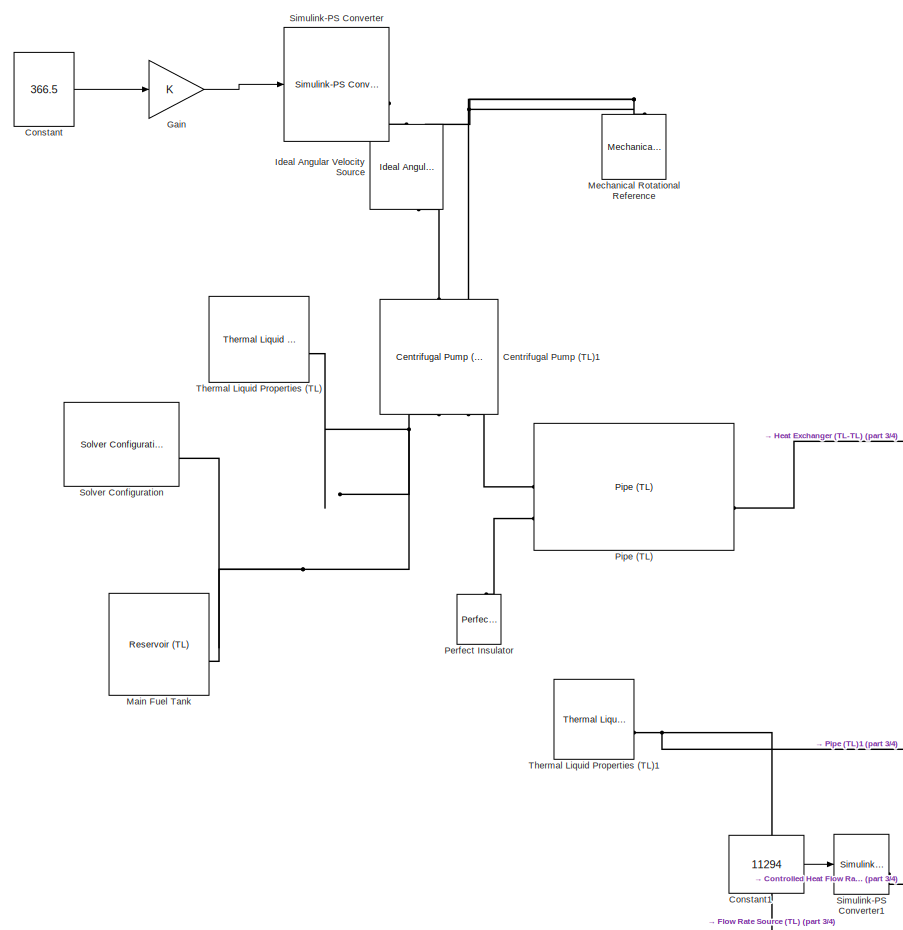
[diagram: root canvas - part 1/4, left side, full height]
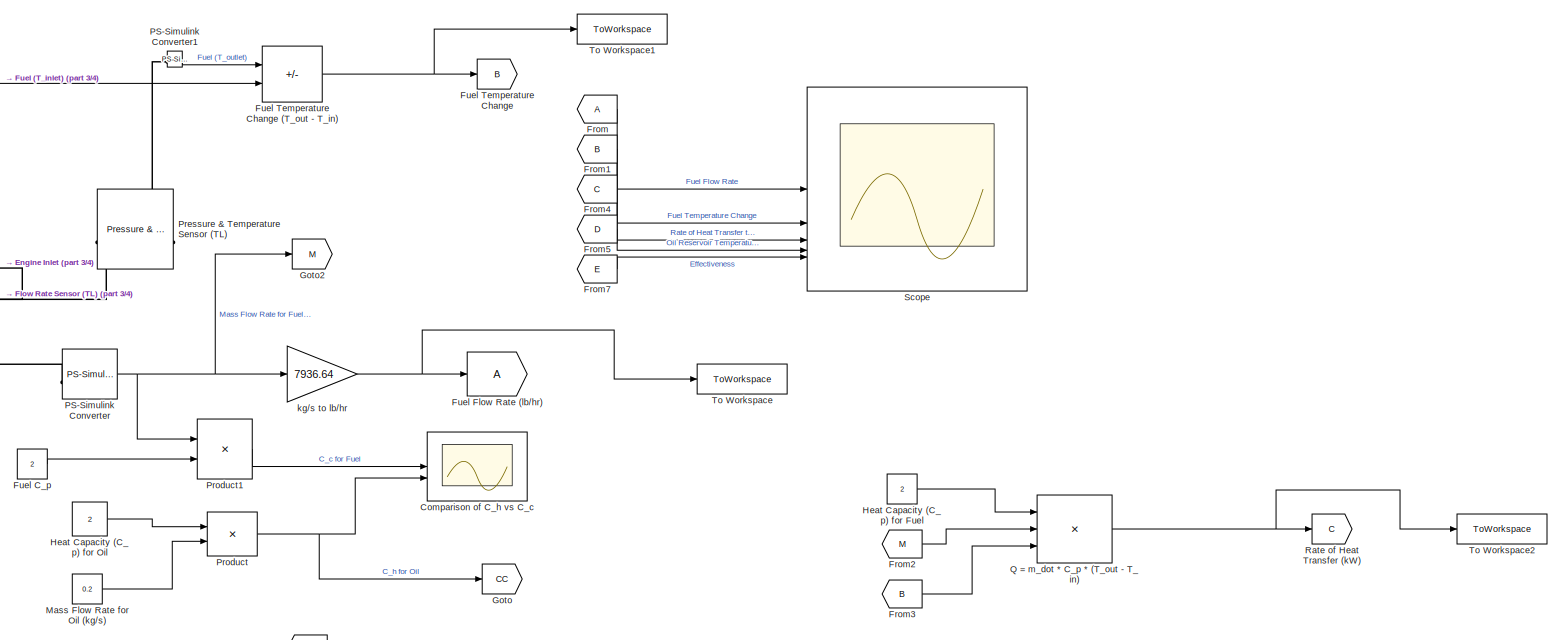
[diagram: root canvas - part 2/4, middle right region]
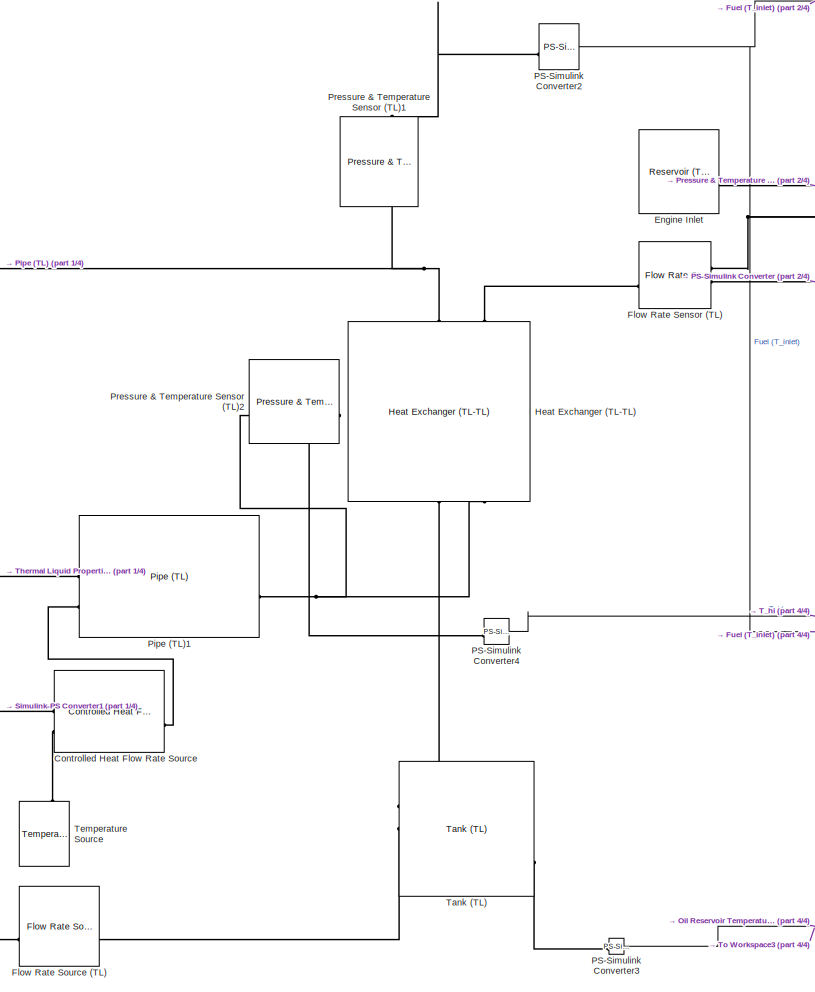
[diagram: root canvas - part 3/4, center side, full height]
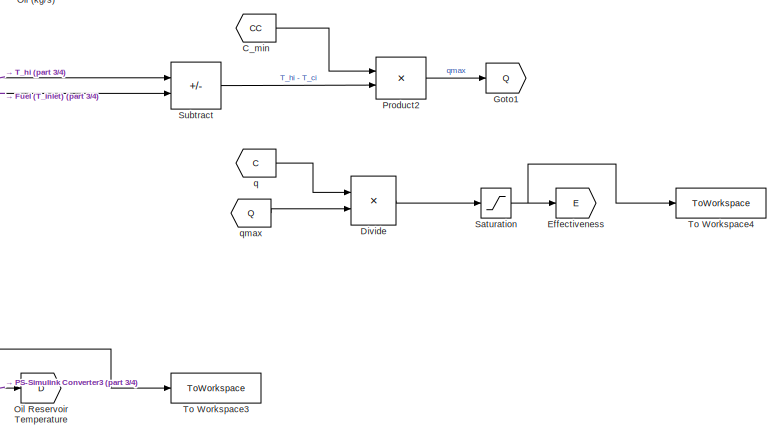
[diagram: root canvas - part 4/4, bottom center region]
MODEL slx_f3819f87617c
KIND model
CONFIG AbsTol = auto
CONFIG EnableMultiTasking = off
CONFIG FixedStep = auto
CONFIG MaxStep = auto
CONFIG MinStep = auto
CONFIG RelTol = 1e-3
CONFIG SampleTimeConstraint = Unconstrained
CONFIG SolverName = VariableStepAuto
CONFIG StartTime = 0.0
CONFIG StopTime = 10800
BLOCK [From] C_min
  GotoTag = CC
BLOCK [Reference] Centrifugal Pump (TL)1  REF=SimscapeFluids_lib/Thermal Liquid/Pumps & Motors/Centrifugal Pump
(TL)
  NameLocation = right
  SourceBlock = SimscapeFluids_lib/Thermal Liquid/Pumps & Motors/Centrifugal Pump\n(TL)
  SourceType = Centrifugal Pump\n(TL)
BLOCK [Scope] Comparison of C_h vs C_c
  ActiveDisplayYMaximum = 0.45
  ActiveDisplayYMinimum = -0.049999999999999989
  ContainerLayout = {"WindowBounds":[1,1369,1534,759],"gridDimensions":{"w":1,"h":1},"tileCount":1,"tileCoverage":1,"columnWeights":1,"rowWeights":1,"tileOccupancy":{"children":[{"id":"/Comparison of C_h vs C_c"},{"id":"/Scope"}]}}
  DataLoggingVariableName = ScopeData1
  Floating = off
  GraphicalSettings = {"Style":{"BackgroundColor":[0.12941176470588237,0.12941176470588237,0.12941176470588237],"AxesColor":[0.07058823529411765,0.07058823529411765,0.07058823529411765],"LabelsColor":[0.8509803921568627,0.8509803921568627,0.8509803921568627],"PreserveColors":false,"Visible":[true,true],"LineStyle":["-","-"],"LineWidth":[1.5,1.5],"BarWidth":[0.9,0.9],"LineColor":["auto","auto"],"LineFaceAlpha":[1,1],"Li...<+2075ch>
  MultipleDisplayCache = [{"MaxYLimMag":0.45,"MaxYLimReal":0.45,"MinYLimMag":0,"MinYLimReal":-0.049999999999999989,"PlotAsMagnitudePhase":false,"ShowGrid":true,"ShowLegend":true,"Title":"%<SignalLabel>","YLabel":""}]
  NumInputPorts = 2
  ShowLegend = on
  Visible = on
  WasSavedAsWebScope = on
BLOCK [Constant] Constant
  Value = 366.5
BLOCK [Constant] Constant1
  Value = 11294
BLOCK [Reference] Controlled Heat Flow Rate Source  REF=fl_lib/Thermal/Thermal Sources/Controlled Heat Flow
Rate Source
  SourceBlock = fl_lib/Thermal/Thermal Sources/Controlled Heat Flow\nRate Source
  SourceType = Controlled Heat Flow\nRate Source
BLOCK [Product] Divide
  Inputs = */
BLOCK [Goto] Effectiveness
  GotoTag = E
BLOCK [Reference] Engine Inlet  REF=fl_lib/Thermal Liquid/Elements/Reservoir (TL)
  SourceBlock = fl_lib/Thermal Liquid/Elements/Reservoir (TL)
  SourceType = Reservoir (TL)
BLOCK [Reference] Flow Rate Sensor (TL)  REF=fl_lib/Thermal Liquid/Sensors/Flow Rate Sensor
(TL)
  SourceBlock = fl_lib/Thermal Liquid/Sensors/Flow Rate Sensor\n(TL)
  SourceType = Flow Rate Sensor\n(TL)
BLOCK [Reference] Flow Rate Source (TL)  REF=fl_lib/Thermal Liquid/Sources/Flow Rate Source
(TL)
  NameLocation = top
  SourceBlock = fl_lib/Thermal Liquid/Sources/Flow Rate Source\n(TL)
  SourceType = Flow Rate Source\n(TL)
BLOCK [From] From
BLOCK [From] From1
  GotoTag = B
BLOCK [From] From2
  GotoTag = M
BLOCK [From] From3
  GotoTag = B
BLOCK [From] From4
  GotoTag = C
BLOCK [From] From5
  GotoTag = D
BLOCK [From] From7
  GotoTag = E
BLOCK [Constant] Fuel C_p
  Value = 2
BLOCK [Goto] Fuel Flow Rate (lb//hr)
BLOCK [Goto] Fuel Temperature Change
  GotoTag = B
BLOCK [Sum] Fuel Temperature Change (T_out - T_in)
  IconShape = rectangular
  Inputs = +-
BLOCK [Gain] Gain
BLOCK [Goto] Goto
  GotoTag = CC
BLOCK [Goto] Goto1
  GotoTag = Q
BLOCK [Goto] Goto2
  GotoTag = M
BLOCK [Constant] Heat Capacity (C_p) for Fuel
  Value = 2
BLOCK [Constant] Heat Capacity (C_p) for Oil
  Value = 2
BLOCK [Reference] Heat Exchanger (TL-TL)  REF=SimscapeFluids_lib/Heat Exchangers/Thermal Liquid/Heat Exchanger
(TL-TL)
  NameLocation = right
  SourceBlock = SimscapeFluids_lib/Heat Exchangers/Thermal Liquid/Heat Exchanger\n(TL-TL)
  SourceType = Heat Exchanger\n(TL-TL)
BLOCK [Reference] Ideal Angular Velocity Source  REF=fl_lib/Mechanical/Mechanical Sources/Ideal Angular
Velocity Source
  NameLocation = right
  SourceBlock = fl_lib/Mechanical/Mechanical Sources/Ideal Angular\nVelocity Source
  SourceType = Ideal Angular\nVelocity Source
BLOCK [Reference] Main Fuel Tank  REF=fl_lib/Thermal Liquid/Elements/Reservoir (TL)
  SourceBlock = fl_lib/Thermal Liquid/Elements/Reservoir (TL)
  SourceType = Reservoir (TL)
BLOCK [Constant] Mass Flow Rate for Oil (kg//s)
  Value = 0.2
BLOCK [Reference] Mechanical Rotational Reference  REF=fl_lib/Mechanical/Rotational Elements/Mechanical
Rotational Reference
  NameLocation = right
  SourceBlock = fl_lib/Mechanical/Rotational Elements/Mechanical\nRotational Reference
  SourceType = Mechanical\nRotational Reference
BLOCK [Goto] Oil Reservoir Temperature 
  GotoTag = D
BLOCK [Reference] PS-Simulink Converter  REF=nesl_utility/PS-Simulink
Converter
  SourceBlock = nesl_utility/PS-Simulink\nConverter
  SourceType = PS-Simulink\nConverter
BLOCK [Reference] PS-Simulink Converter1  REF=nesl_utility/PS-Simulink
Converter
  SourceBlock = nesl_utility/PS-Simulink\nConverter
  SourceType = PS-Simulink\nConverter
BLOCK [Reference] PS-Simulink Converter2  REF=nesl_utility/PS-Simulink
Converter
  SourceBlock = nesl_utility/PS-Simulink\nConverter
  SourceType = PS-Simulink\nConverter
BLOCK [Reference] PS-Simulink Converter3  REF=nesl_utility/PS-Simulink
Converter
  SourceBlock = nesl_utility/PS-Simulink\nConverter
  SourceType = PS-Simulink\nConverter
BLOCK [Reference] PS-Simulink Converter4  REF=nesl_utility/PS-Simulink
Converter
  SourceBlock = nesl_utility/PS-Simulink\nConverter
  SourceType = PS-Simulink\nConverter
BLOCK [Reference] Perfect Insulator  REF=fl_lib/Thermal/Thermal Elements/Perfect Insulator
  NameLocation = right
  SourceBlock = fl_lib/Thermal/Thermal Elements/Perfect Insulator
  SourceType = Perfect Insulator
BLOCK [Reference] Pipe (TL)  REF=SimscapeFluids_lib/Thermal Liquid/Pipes & Fittings/Pipe (TL)
  SourceBlock = SimscapeFluids_lib/Thermal Liquid/Pipes & Fittings/Pipe (TL)
  SourceType = Pipe (TL)
BLOCK [Reference] Pipe (TL)1  REF=SimscapeFluids_lib/Thermal Liquid/Pipes & Fittings/Pipe (TL)
  SourceBlock = SimscapeFluids_lib/Thermal Liquid/Pipes & Fittings/Pipe (TL)
  SourceType = Pipe (TL)
BLOCK [Reference] Pressure & Temperature Sensor (TL)  REF=fl_lib/Thermal Liquid/Sensors/Pressure &
Temperature Sensor
(TL)
  NameLocation = top
  SourceBlock = fl_lib/Thermal Liquid/Sensors/Pressure &\nTemperature Sensor\n(TL)
  SourceType = Pressure &\nTemperature Sensor\n(TL)
BLOCK [Reference] Pressure & Temperature Sensor (TL)1  REF=fl_lib/Thermal Liquid/Sensors/Pressure &
Temperature Sensor
(TL)
  NameLocation = right
  SourceBlock = fl_lib/Thermal Liquid/Sensors/Pressure &\nTemperature Sensor\n(TL)
  SourceType = Pressure &\nTemperature Sensor\n(TL)
BLOCK [Reference] Pressure & Temperature Sensor (TL)2  REF=fl_lib/Thermal Liquid/Sensors/Pressure &
Temperature Sensor
(TL)
  SourceBlock = fl_lib/Thermal Liquid/Sensors/Pressure &\nTemperature Sensor\n(TL)
  SourceType = Pressure &\nTemperature Sensor\n(TL)
BLOCK [Product] Product
BLOCK [Product] Product1
BLOCK [Product] Product2
BLOCK [Product] Q = m_dot * C_p * (T_out - T_in)
  Inputs = 3
BLOCK [Goto] Rate of Heat Transfer (kW)
  GotoTag = C
BLOCK [Saturate] Saturation
  LowerLimit = 0
  UpperLimit = 1
BLOCK [Scope] Scope
  ActiveDisplayYMaximum = 1500
  ActiveDisplayYMinimum = 0
  ContainerLayout = {"WindowBounds":[1,1369,1534,759]}
  Floating = off
  GraphicalSettings = {"AxesScalingProperties":{"AlignXAxis":"Center","AlignYAxis":"Center","AutoScaleXAxisLimits":false,"AxesScaling":"Manual","AxesScalingNumUpdates":10,"ExpandOnly":true,"ScaleAxesLimitsAtStop":false,"XAxisDataRange":100,"YAxisDataRange":80},"DisplayProperties":{"ColorOrder":["auto","auto","auto","auto","auto","auto","auto","auto","auto","auto","auto","auto","auto","auto","auto","auto","auto","auto",...<+4176ch>
  LayoutDimensionsString = [3 2]
  MultipleDisplayCache = [{"MaxYLimMag":1562.5365340363242,"MaxYLimReal":1500,"MinYLimMag":0,"MinYLimReal":0,"PlotAsMagnitudePhase":false,"ShowGrid":true,"ShowLegend":true,"Title":"%<SignalLabel>","YLabel":""},{"MaxYLimMag":1562.5365340363242,"MaxYLimReal":7.7631115515944344,"MinYLimMag":0,"MinYLimReal":-10.9487482237712,"PlotAsMagnitudePhase":false,"ShowGrid":true,"ShowLegend":true,"Title":"%<SignalLabel>","YLabel":""},{...<+863ch>
  NumInputPorts = 5
  ShowLegend = on
  Visible = on
  WasSavedAsWebScope = on
BLOCK [Reference] Simulink-PS Converter  REF=nesl_utility/Simulink-PS
Converter
  SourceBlock = nesl_utility/Simulink-PS\nConverter
  SourceType = Simulink-PS\nConverter
BLOCK [Reference] Simulink-PS Converter1  REF=nesl_utility/Simulink-PS
Converter
  SourceBlock = nesl_utility/Simulink-PS\nConverter
  SourceType = Simulink-PS\nConverter
BLOCK [Reference] Solver Configuration  REF=nesl_utility/Solver
Configuration
  SourceBlock = nesl_utility/Solver\nConfiguration
  SourceType = Solver\nConfiguration
BLOCK [Sum] Subtract
  IconShape = rectangular
  Inputs = +-
BLOCK [Reference] Tank (TL)  REF=SimscapeFluids_lib/Thermal Liquid/Tanks & Accumulators/Tank (TL)
  SourceBlock = SimscapeFluids_lib/Thermal Liquid/Tanks & Accumulators/Tank (TL)
  SourceType = Tank (TL)
BLOCK [Reference] Temperature Source  REF=fl_lib/Thermal/Thermal Sources/Temperature Source
  NameLocation = right
  SourceBlock = fl_lib/Thermal/Thermal Sources/Temperature Source
  SourceType = Temperature Source
BLOCK [Reference] Thermal Liquid Properties (TL)  REF=SimscapeFluids_lib/Thermal Liquid/Utilities/Thermal Liquid
Properties (TL)
  SourceBlock = SimscapeFluids_lib/Thermal Liquid/Utilities/Thermal Liquid\nProperties (TL)
  SourceType = Thermal Liquid\nProperties (TL)
BLOCK [Reference] Thermal Liquid Properties (TL)1  REF=SimscapeFluids_lib/Thermal Liquid/Utilities/Thermal Liquid
Properties (TL)
  SourceBlock = SimscapeFluids_lib/Thermal Liquid/Utilities/Thermal Liquid\nProperties (TL)
  SourceType = Thermal Liquid\nProperties (TL)
BLOCK [ToWorkspace] To Workspace
  FixptAsFi = on
  MaxDataPoints = 1
  SampleTime = -1
  VariableName = fuelflow
BLOCK [ToWorkspace] To Workspace1
  FixptAsFi = on
  MaxDataPoints = 1
  SampleTime = -1
  VariableName = tempchg
BLOCK [ToWorkspace] To Workspace2
  FixptAsFi = on
  MaxDataPoints = 1
  SampleTime = -1
  VariableName = HTRate
BLOCK [ToWorkspace] To Workspace3
  FixptAsFi = on
  MaxDataPoints = 1
  SampleTime = -1
  VariableName = oiltemp
BLOCK [ToWorkspace] To Workspace4
  FixptAsFi = on
  MaxDataPoints = 1
  SampleTime = -1
  VariableName = effectiveness
BLOCK [Gain] kg//s to lb//hr
  Gain = 7936.64
BLOCK [From] q
  GotoTag = C
BLOCK [From] qmax
  GotoTag = Q
LINE C_min:1 -> Product2:1
LINE Constant1:1 -> Simulink-PS Converter1:1
LINE Constant:1 -> Gain:1
LINE Divide:1 -> Saturation:1
LINE From1:1 -> Scope:2
LINE From2:1 -> Q = m_dot * C_p * (T_out - T_in):2
LINE From3:1 -> Q = m_dot * C_p * (T_out - T_in):3
LINE From4:1 -> Scope:3
LINE From5:1 -> Scope:4
LINE From7:1 -> Scope:5
LINE From:1 -> Scope:1
LINE Fuel C_p:1 -> Product1:2
NET Fuel Temperature Change (T_out - T_in):1 -> Fuel Temperature Change:1, To Workspace1:1
LINE Gain:1 -> Simulink-PS Converter:1
LINE Heat Capacity (C_p) for Fuel:1 -> Q = m_dot * C_p * (T_out - T_in):1
LINE Heat Capacity (C_p) for Oil:1 -> Product:1
LINE Mass Flow Rate for Oil (kg//s):1 -> Product:2
LINE PS-Simulink Converter1:1 -> Fuel Temperature Change (T_out - T_in):1
NET PS-Simulink Converter2:1 -> Fuel Temperature Change (T_out - T_in):2, Subtract:2
NET PS-Simulink Converter3:1 -> Oil Reservoir Temperature :1, To Workspace3:1
LINE PS-Simulink Converter4:1 -> Subtract:1
NET PS-Simulink Converter:1 -> Goto2:1, Product1:1, kg//s to lb//hr:1
LINE Product1:1 -> Comparison of C_h vs C_c:1
LINE Product2:1 -> Goto1:1
NET Product:1 -> Comparison of C_h vs C_c:2, Goto:1
NET Q = m_dot * C_p * (T_out - T_in):1 -> Rate of Heat Transfer (kW):1, To Workspace2:1
NET Saturation:1 -> Effectiveness:1, To Workspace4:1
LINE Subtract:1 -> Product2:2
NET kg//s to lb//hr:1 -> Fuel Flow Rate (lb//hr):1, To Workspace:1
LINE q:1 -> Divide:1
LINE qmax:1 -> Divide:2
PNET net1: Centrifugal Pump (TL)1:LConn1 -- Main Fuel Tank:LConn1 -- Solver Configuration:RConn1 -- Thermal Liquid Properties (TL):RConn1
PLINE Centrifugal Pump (TL)1:LConn2 -- Pipe (TL):LConn1
PLINE Centrifugal Pump (TL)1:RConn1 -- Ideal Angular Velocity Source:LConn1
PNET net2: Centrifugal Pump (TL)1:RConn2 -- Ideal Angular Velocity Source:RConn2 -- Mechanical Rotational Reference:LConn1
PLINE Controlled Heat Flow Rate Source:LConn1 -- Pipe (TL)1:LConn2
PLINE Controlled Heat Flow Rate Source:RConn1 -- Simulink-PS Converter1:RConn1
PLINE Controlled Heat Flow Rate Source:RConn2 -- Temperature Source:LConn1
PNET net3: Engine Inlet:LConn1 -- Flow Rate Sensor (TL):RConn1 -- Pressure & Temperature Sensor (TL):LConn1
PLINE Flow Rate Sensor (TL):LConn1 -- Heat Exchanger (TL-TL):RConn2
PLINE Flow Rate Sensor (TL):RConn2 -- PS-Simulink Converter:LConn1
PLINE Flow Rate Source (TL):LConn1 -- Tank (TL):LConn2
PNET net4: Flow Rate Source (TL):RConn1 -- Pipe (TL)1:LConn1 -- Thermal Liquid Properties (TL)1:RConn1
PLINE Heat Exchanger (TL-TL):LConn1 -- Tank (TL):LConn1
PNET net5: Heat Exchanger (TL-TL):LConn2 -- Pipe (TL)1:RConn1 -- Pressure & Temperature Sensor (TL)2:LConn1
PNET net6: Heat Exchanger (TL-TL):RConn1 -- Pipe (TL):RConn1 -- Pressure & Temperature Sensor (TL)1:LConn1
PLINE Ideal Angular Velocity Source:RConn1 -- Simulink-PS Converter:RConn1
PLINE PS-Simulink Converter1:LConn1 -- Pressure & Temperature Sensor (TL):RConn1
PLINE PS-Simulink Converter2:LConn1 -- Pressure & Temperature Sensor (TL)1:RConn1
PLINE PS-Simulink Converter3:LConn1 -- Tank (TL):RConn2
PLINE PS-Simulink Converter4:LConn1 -- Pressure & Temperature Sensor (TL)2:RConn1
PLINE Perfect Insulator:LConn1 -- Pipe (TL):LConn2
note: NET lines group one-source signal fan-out (src -> all destinations, sorted); 1:1 wires keep LINE; PNET lines group multi-terminal physical nets as a canonical sorted terminal list (undirected conserving connections); 2-terminal nets keep the pairwise PLINE form
